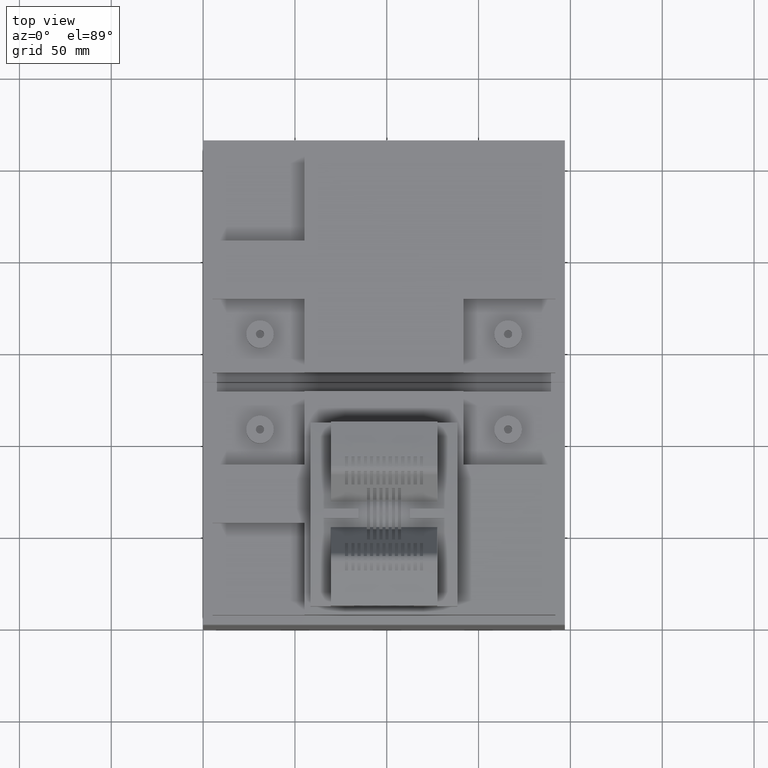
[diagram: clean part render]
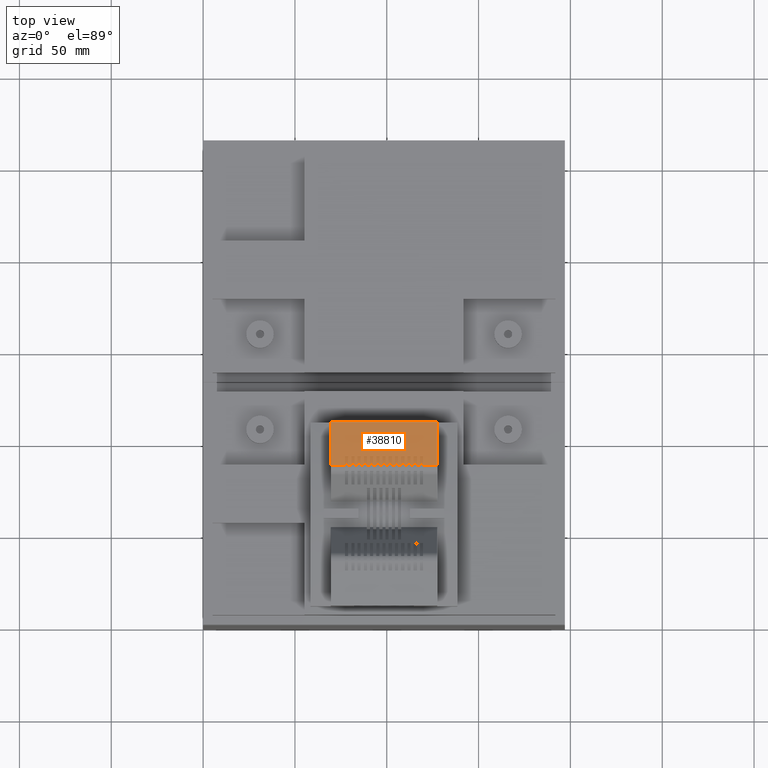
[diagram: same view with one face highlighted and labeled with its STEP entity id]
A machine part, top view. The second image highlights one B-rep face of the part: STEP entity #38810.
In plain terms, the highlighted cylindrical surface (partial cylindrical patch) has radius 252.5 mm, axis along (1, 0, 0).
Its self-contained STEP definition (entity closure, byte-faithful):
#14690=CARTESIAN_POINT('',(127.5,364.05,217.7));
#14700=VERTEX_POINT('',#14690);
#14730=CARTESIAN_POINT('',(68.9999999999996,364.05,217.7));
#14740=DIRECTION('',(1.,0.,0.));
#14750=VECTOR('',#14740,1.);
#14760=LINE('',#14730,#14750);
#14770=CARTESIAN_POINT('',(69.5,364.05,217.7));
#14780=VERTEX_POINT('',#14770);
#14790=EDGE_CURVE('',#14780,#14700,#14760,.T.);
#15840=CARTESIAN_POINT('',(106.15,340.06458602042,221.356308529541));
#15850=DIRECTION('',(1.,0.,0.));
#15860=VECTOR('',#15850,1.);
#15870=LINE('',#15840,#15860);
#15880=CARTESIAN_POINT('',(106.15,340.06458602042,221.356308529541));
#15890=VERTEX_POINT('',#15880);
#15900=CARTESIAN_POINT('',(107.85,340.06458602042,221.356308529541));
#15910=VERTEX_POINT('',#15900);
#15920=EDGE_CURVE('',#15890,#15910,#15870,.T.);
#24330=CARTESIAN_POINT('',(69.5,340.06458602042,221.356308529541));
#24340=VERTEX_POINT('',#24330);
#24370=CARTESIAN_POINT('',(69.5,340.06458602042,221.356308529541));
#24380=DIRECTION('',(1.,0.,0.));
#24390=VECTOR('',#24380,1.);
#24400=LINE('',#24370,#24390);
#24410=CARTESIAN_POINT('',(77.25,340.06458602042,221.356308529541));
#24420=VERTEX_POINT('',#24410);
#24430=EDGE_CURVE('',#24340,#24420,#24400,.T.);
#24760=CARTESIAN_POINT('',(69.5,314.049999999991,-29.8000000000542));
#24770=DIRECTION('',(1.,0.,0.));
#24780=DIRECTION('',(0.,-1.,0.));
#24790=AXIS2_PLACEMENT_3D('',#24760,#24770,#24780);
#24800=CIRCLE('',#24790,252.500000000055);
#24810=EDGE_CURVE('',#14780,#24340,#24800,.T.);
#33170=CARTESIAN_POINT('',(112.95,340.06458602042,221.356308529541));
#33180=VERTEX_POINT('',#33170);
#33210=CARTESIAN_POINT('',(112.95,340.06458602042,221.356308529541));
#33220=DIRECTION('',(1.,0.,0.));
#33230=VECTOR('',#33220,1.);
#33240=LINE('',#33210,#33230);
#33250=CARTESIAN_POINT('',(114.65,340.06458602042,221.356308529541));
#33260=VERTEX_POINT('',#33250);
#33270=EDGE_CURVE('',#33180,#33260,#33240,.T.);
#33510=CARTESIAN_POINT('',(107.85,314.049999999991,-29.8000000000542));
#33520=DIRECTION('',(1.,0.,0.));
#33530=DIRECTION('',(0.,-1.,0.));
#33540=AXIS2_PLACEMENT_3D('',#33510,#33520,#33530);
#33550=CIRCLE('',#33540,252.500000000055);
#33560=CARTESIAN_POINT('',(107.85,345.05,220.789804261865));
#33570=VERTEX_POINT('',#33560);
#33580=EDGE_CURVE('',#33570,#15910,#33550,.T.);
#34480=CARTESIAN_POINT('',(68.9999999999996,314.049999999991,
-29.8000000000542));
#34490=DIRECTION('',(1.,0.,0.));
#34500=DIRECTION('',(0.,-1.,0.));
#34510=AXIS2_PLACEMENT_3D('',#34480,#34490,#34500);
#34520=CYLINDRICAL_SURFACE('',#34510,252.500000000055);
#34530=CARTESIAN_POINT('',(119.75,340.06458602042,221.356308529541));
#34540=DIRECTION('',(1.,0.,0.));
#34550=VECTOR('',#34540,1.);
#34560=LINE('',#34530,#34550);
#34570=CARTESIAN_POINT('',(119.75,340.06458602042,221.356308529541));
#34580=VERTEX_POINT('',#34570);
#34590=CARTESIAN_POINT('',(127.5,340.06458602042,221.356308529541));
#34600=VERTEX_POINT('',#34590);
#34610=EDGE_CURVE('',#34580,#34600,#34560,.T.);
#34620=ORIENTED_EDGE('',*,*,#34610,.T.);
#34630=CARTESIAN_POINT('',(119.75,314.049999999991,-29.8000000000542));
#34640=DIRECTION('',(1.,0.,0.));
#34650=DIRECTION('',(0.,-1.,0.));
#34660=AXIS2_PLACEMENT_3D('',#34630,#34640,#34650);
#34670=CIRCLE('',#34660,252.500000000055);
#34680=CARTESIAN_POINT('',(119.75,345.05,220.789804261865));
#34690=VERTEX_POINT('',#34680);
#34700=EDGE_CURVE('',#34690,#34580,#34670,.T.);
#34710=ORIENTED_EDGE('',*,*,#34700,.T.);
#34720=CARTESIAN_POINT('',(68.9999999999996,345.05,220.789804261865));
#34730=DIRECTION('',(1.,0.,0.));
#34740=VECTOR('',#34730,1.);
#34750=LINE('',#34720,#34740);
#34760=CARTESIAN_POINT('',(118.05,345.05,220.789804261865));
#34770=VERTEX_POINT('',#34760);
#34780=EDGE_CURVE('',#34770,#34690,#34750,.T.);
#34790=ORIENTED_EDGE('',*,*,#34780,.T.);
#34800=CARTESIAN_POINT('',(118.05,314.049999999991,-29.8000000000542));
#34810=DIRECTION('',(1.,0.,0.));
#34820=DIRECTION('',(0.,-1.,0.));
#34830=AXIS2_PLACEMENT_3D('',#34800,#34810,#34820);
#34840=CIRCLE('',#34830,252.500000000055);
#34850=CARTESIAN_POINT('',(118.05,340.06458602042,221.356308529541));
#34860=VERTEX_POINT('',#34850);
#34870=EDGE_CURVE('',#34770,#34860,#34840,.T.);
#34880=ORIENTED_EDGE('',*,*,#34870,.F.);
#34890=CARTESIAN_POINT('',(116.35,340.06458602042,221.356308529541));
#34900=DIRECTION('',(1.,0.,0.));
#34910=VECTOR('',#34900,1.);
#34920=LINE('',#34890,#34910);
#34930=CARTESIAN_POINT('',(116.35,340.06458602042,221.356308529541));
#34940=VERTEX_POINT('',#34930);
#34950=EDGE_CURVE('',#34940,#34860,#34920,.T.);
#34960=ORIENTED_EDGE('',*,*,#34950,.T.);
#34970=CARTESIAN_POINT('',(116.35,314.049999999991,-29.8000000000542));
#34980=DIRECTION('',(1.,0.,0.));
#34990=DIRECTION('',(0.,-1.,0.));
#35000=AXIS2_PLACEMENT_3D('',#34970,#34980,#34990);
#35010=CIRCLE('',#35000,252.500000000055);
#35020=CARTESIAN_POINT('',(116.35,345.05,220.789804261865));
#35030=VERTEX_POINT('',#35020);
#35040=EDGE_CURVE('',#35030,#34940,#35010,.T.);
#35050=ORIENTED_EDGE('',*,*,#35040,.T.);
#35060=CARTESIAN_POINT('',(68.9999999999996,345.05,220.789804261865));
#35070=DIRECTION('',(1.,0.,0.));
#35080=VECTOR('',#35070,1.);
#35090=LINE('',#35060,#35080);
#35100=CARTESIAN_POINT('',(114.65,345.05,220.789804261865));
#35110=VERTEX_POINT('',#35100);
#35120=EDGE_CURVE('',#35110,#35030,#35090,.T.);
#35130=ORIENTED_EDGE('',*,*,#35120,.T.);
#35140=CARTESIAN_POINT('',(114.65,314.049999999991,-29.8000000000542));
#35150=DIRECTION('',(1.,0.,0.));
#35160=DIRECTION('',(0.,-1.,0.));
#35170=AXIS2_PLACEMENT_3D('',#35140,#35150,#35160);
#35180=CIRCLE('',#35170,252.500000000055);
#35190=EDGE_CURVE('',#35110,#33260,#35180,.T.);
#35200=ORIENTED_EDGE('',*,*,#35190,.F.);
#35210=ORIENTED_EDGE('',*,*,#33270,.T.);
#35220=CARTESIAN_POINT('',(112.95,314.049999999991,-29.8000000000542));
#35230=DIRECTION('',(1.,0.,0.));
#35240=DIRECTION('',(0.,-1.,0.));
#35250=AXIS2_PLACEMENT_3D('',#35220,#35230,#35240);
#35260=CIRCLE('',#35250,252.500000000055);
#35270=CARTESIAN_POINT('',(112.95,345.05,220.789804261865));
#35280=VERTEX_POINT('',#35270);
#35290=EDGE_CURVE('',#35280,#33180,#35260,.T.);
#35300=ORIENTED_EDGE('',*,*,#35290,.T.);
#35310=CARTESIAN_POINT('',(68.9999999999996,345.05,220.789804261865));
#35320=DIRECTION('',(1.,0.,0.));
#35330=VECTOR('',#35320,1.);
#35340=LINE('',#35310,#35330);
#35350=CARTESIAN_POINT('',(111.25,345.05,220.789804261865));
#35360=VERTEX_POINT('',#35350);
#35370=EDGE_CURVE('',#35360,#35280,#35340,.T.);
#35380=ORIENTED_EDGE('',*,*,#35370,.T.);
#35390=CARTESIAN_POINT('',(111.25,314.049999999991,-29.8000000000542));
#35400=DIRECTION('',(1.,0.,0.));
#35410=DIRECTION('',(0.,-1.,0.));
#35420=AXIS2_PLACEMENT_3D('',#35390,#35400,#35410);
#35430=CIRCLE('',#35420,252.500000000055);
#35440=CARTESIAN_POINT('',(111.25,340.06458602042,221.356308529541));
#35450=VERTEX_POINT('',#35440);
#35460=EDGE_CURVE('',#35360,#35450,#35430,.T.);
#35470=ORIENTED_EDGE('',*,*,#35460,.F.);
#35480=CARTESIAN_POINT('',(109.55,340.06458602042,221.356308529541));
#35490=DIRECTION('',(1.,0.,0.));
#35500=VECTOR('',#35490,1.);
#35510=LINE('',#35480,#35500);
#35520=CARTESIAN_POINT('',(109.55,340.06458602042,221.356308529541));
#35530=VERTEX_POINT('',#35520);
#35540=EDGE_CURVE('',#35530,#35450,#35510,.T.);
#35550=ORIENTED_EDGE('',*,*,#35540,.T.);
#35560=CARTESIAN_POINT('',(109.55,314.049999999991,-29.8000000000542));
#35570=DIRECTION('',(1.,0.,0.));
#35580=DIRECTION('',(0.,-1.,0.));
#35590=AXIS2_PLACEMENT_3D('',#35560,#35570,#35580);
#35600=CIRCLE('',#35590,252.500000000055);
#35610=CARTESIAN_POINT('',(109.55,345.05,220.789804261865));
#35620=VERTEX_POINT('',#35610);
#35630=EDGE_CURVE('',#35620,#35530,#35600,.T.);
#35640=ORIENTED_EDGE('',*,*,#35630,.T.);
#35650=CARTESIAN_POINT('',(68.9999999999996,345.05,220.789804261865));
#35660=DIRECTION('',(1.,0.,0.));
#35670=VECTOR('',#35660,1.);
#35680=LINE('',#35650,#35670);
#35690=EDGE_CURVE('',#33570,#35620,#35680,.T.);
#35700=ORIENTED_EDGE('',*,*,#35690,.T.);
#35710=ORIENTED_EDGE('',*,*,#33580,.F.);
#35720=ORIENTED_EDGE('',*,*,#15920,.T.);
#35730=CARTESIAN_POINT('',(106.15,314.049999999991,-29.8000000000542));
#35740=DIRECTION('',(1.,0.,0.));
#35750=DIRECTION('',(0.,-1.,0.));
#35760=AXIS2_PLACEMENT_3D('',#35730,#35740,#35750);
#35770=CIRCLE('',#35760,252.500000000055);
#35780=CARTESIAN_POINT('',(106.15,345.05,220.789804261865));
#35790=VERTEX_POINT('',#35780);
#35800=EDGE_CURVE('',#35790,#15890,#35770,.T.);
#35810=ORIENTED_EDGE('',*,*,#35800,.T.);
#35820=CARTESIAN_POINT('',(68.9999999999996,345.05,220.789804261865));
#35830=DIRECTION('',(1.,0.,0.));
#35840=VECTOR('',#35830,1.);
#35850=LINE('',#35820,#35840);
#35860=CARTESIAN_POINT('',(104.45,345.05,220.789804261865));
#35870=VERTEX_POINT('',#35860);
#35880=EDGE_CURVE('',#35870,#35790,#35850,.T.);
#35890=ORIENTED_EDGE('',*,*,#35880,.T.);
#35900=CARTESIAN_POINT('',(104.45,314.049999999991,-29.8000000000542));
#35910=DIRECTION('',(1.,0.,0.));
#35920=DIRECTION('',(0.,-1.,0.));
#35930=AXIS2_PLACEMENT_3D('',#35900,#35910,#35920);
#35940=CIRCLE('',#35930,252.500000000055);
#35950=CARTESIAN_POINT('',(104.45,340.06458602042,221.356308529541));
#35960=VERTEX_POINT('',#35950);
#35970=EDGE_CURVE('',#35870,#35960,#35940,.T.);
#35980=ORIENTED_EDGE('',*,*,#35970,.F.);
#35990=CARTESIAN_POINT('',(102.75,340.06458602042,221.356308529541));
#36000=DIRECTION('',(1.,0.,0.));
#36010=VECTOR('',#36000,1.);
#36020=LINE('',#35990,#36010);
#36030=CARTESIAN_POINT('',(102.75,340.06458602042,221.356308529541));
#36040=VERTEX_POINT('',#36030);
#36050=EDGE_CURVE('',#36040,#35960,#36020,.T.);
#36060=ORIENTED_EDGE('',*,*,#36050,.T.);
#36070=CARTESIAN_POINT('',(102.75,314.049999999991,-29.8000000000542));
#36080=DIRECTION('',(1.,0.,0.));
#36090=DIRECTION('',(0.,-1.,0.));
#36100=AXIS2_PLACEMENT_3D('',#36070,#36080,#36090);
#36110=CIRCLE('',#36100,252.500000000055);
#36120=CARTESIAN_POINT('',(102.75,345.05,220.789804261865));
#36130=VERTEX_POINT('',#36120);
#36140=EDGE_CURVE('',#36130,#36040,#36110,.T.);
#36150=ORIENTED_EDGE('',*,*,#36140,.T.);
#36160=CARTESIAN_POINT('',(68.9999999999996,345.05,220.789804261865));
#36170=DIRECTION('',(1.,0.,0.));
#36180=VECTOR('',#36170,1.);
#36190=LINE('',#36160,#36180);
#36200=CARTESIAN_POINT('',(101.05,345.05,220.789804261865));
#36210=VERTEX_POINT('',#36200);
#36220=EDGE_CURVE('',#36210,#36130,#36190,.T.);
#36230=ORIENTED_EDGE('',*,*,#36220,.T.);
#36240=CARTESIAN_POINT('',(101.05,314.049999999991,-29.8000000000542));
#36250=DIRECTION('',(1.,0.,0.));
#36260=DIRECTION('',(0.,-1.,0.));
#36270=AXIS2_PLACEMENT_3D('',#36240,#36250,#36260);
#36280=CIRCLE('',#36270,252.500000000055);
#36290=CARTESIAN_POINT('',(101.05,340.06458602042,221.356308529541));
#36300=VERTEX_POINT('',#36290);
#36310=EDGE_CURVE('',#36210,#36300,#36280,.T.);
#36320=ORIENTED_EDGE('',*,*,#36310,.F.);
#36330=CARTESIAN_POINT('',(99.35,340.06458602042,221.356308529541));
#36340=DIRECTION('',(1.,0.,0.));
#36350=VECTOR('',#36340,1.);
#36360=LINE('',#36330,#36350);
#36370=CARTESIAN_POINT('',(99.35,340.06458602042,221.356308529541));
#36380=VERTEX_POINT('',#36370);
#36390=EDGE_CURVE('',#36380,#36300,#36360,.T.);
#36400=ORIENTED_EDGE('',*,*,#36390,.T.);
#36410=CARTESIAN_POINT('',(99.35,314.049999999991,-29.8000000000542));
#36420=DIRECTION('',(1.,0.,0.));
#36430=DIRECTION('',(0.,-1.,0.));
#36440=AXIS2_PLACEMENT_3D('',#36410,#36420,#36430);
#36450=CIRCLE('',#36440,252.500000000055);
#36460=CARTESIAN_POINT('',(99.35,345.05,220.789804261865));
#36470=VERTEX_POINT('',#36460);
#36480=EDGE_CURVE('',#36470,#36380,#36450,.T.);
#36490=ORIENTED_EDGE('',*,*,#36480,.T.);
#36500=CARTESIAN_POINT('',(68.9999999999996,345.05,220.789804261865));
#36510=DIRECTION('',(1.,0.,0.));
#36520=VECTOR('',#36510,1.);
#36530=LINE('',#36500,#36520);
#36540=CARTESIAN_POINT('',(97.65,345.05,220.789804261865));
#36550=VERTEX_POINT('',#36540);
#36560=EDGE_CURVE('',#36550,#36470,#36530,.T.);
#36570=ORIENTED_EDGE('',*,*,#36560,.T.);
#36580=CARTESIAN_POINT('',(97.65,314.049999999991,-29.8000000000542));
#36590=DIRECTION('',(1.,0.,0.));
#36600=DIRECTION('',(0.,-1.,0.));
#36610=AXIS2_PLACEMENT_3D('',#36580,#36590,#36600);
#36620=CIRCLE('',#36610,252.500000000055);
#36630=CARTESIAN_POINT('',(97.65,340.06458602042,221.356308529541));
#36640=VERTEX_POINT('',#36630);
#36650=EDGE_CURVE('',#36550,#36640,#36620,.T.);
#36660=ORIENTED_EDGE('',*,*,#36650,.F.);
#36670=CARTESIAN_POINT('',(95.95,340.06458602042,221.356308529541));
#36680=DIRECTION('',(1.,0.,0.));
#36690=VECTOR('',#36680,1.);
#36700=LINE('',#36670,#36690);
#36710=CARTESIAN_POINT('',(95.95,340.06458602042,221.356308529541));
#36720=VERTEX_POINT('',#36710);
#36730=EDGE_CURVE('',#36720,#36640,#36700,.T.);
#36740=ORIENTED_EDGE('',*,*,#36730,.T.);
#36750=CARTESIAN_POINT('',(95.95,314.049999999991,-29.8000000000542));
#36760=DIRECTION('',(1.,0.,0.));
#36770=DIRECTION('',(0.,-1.,0.));
#36780=AXIS2_PLACEMENT_3D('',#36750,#36760,#36770);
#36790=CIRCLE('',#36780,252.500000000055);
#36800=CARTESIAN_POINT('',(95.95,345.05,220.789804261865));
#36810=VERTEX_POINT('',#36800);
#36820=EDGE_CURVE('',#36810,#36720,#36790,.T.);
#36830=ORIENTED_EDGE('',*,*,#36820,.T.);
#36840=CARTESIAN_POINT('',(68.9999999999996,345.05,220.789804261865));
#36850=DIRECTION('',(1.,0.,0.));
#36860=VECTOR('',#36850,1.);
#36870=LINE('',#36840,#36860);
#36880=CARTESIAN_POINT('',(94.25,345.05,220.789804261865));
#36890=VERTEX_POINT('',#36880);
#36900=EDGE_CURVE('',#36890,#36810,#36870,.T.);
#36910=ORIENTED_EDGE('',*,*,#36900,.T.);
#36920=CARTESIAN_POINT('',(94.25,314.049999999991,-29.8000000000542));
#36930=DIRECTION('',(1.,0.,0.));
#36940=DIRECTION('',(0.,-1.,0.));
#36950=AXIS2_PLACEMENT_3D('',#36920,#36930,#36940);
#36960=CIRCLE('',#36950,252.500000000055);
#36970=CARTESIAN_POINT('',(94.25,340.06458602042,221.356308529541));
#36980=VERTEX_POINT('',#36970);
#36990=EDGE_CURVE('',#36890,#36980,#36960,.T.);
#37000=ORIENTED_EDGE('',*,*,#36990,.F.);
#37010=CARTESIAN_POINT('',(92.55,340.06458602042,221.356308529541));
#37020=DIRECTION('',(1.,0.,0.));
#37030=VECTOR('',#37020,1.);
#37040=LINE('',#37010,#37030);
#37050=CARTESIAN_POINT('',(92.55,340.06458602042,221.356308529541));
#37060=VERTEX_POINT('',#37050);
#37070=EDGE_CURVE('',#37060,#36980,#37040,.T.);
#37080=ORIENTED_EDGE('',*,*,#37070,.T.);
#37090=CARTESIAN_POINT('',(92.55,314.049999999991,-29.8000000000542));
#37100=DIRECTION('',(1.,0.,0.));
#37110=DIRECTION('',(0.,-1.,0.));
#37120=AXIS2_PLACEMENT_3D('',#37090,#37100,#37110);
#37130=CIRCLE('',#37120,252.500000000055);
#37140=CARTESIAN_POINT('',(92.55,345.05,220.789804261865));
#37150=VERTEX_POINT('',#37140);
#37160=EDGE_CURVE('',#37150,#37060,#37130,.T.);
#37170=ORIENTED_EDGE('',*,*,#37160,.T.);
#37180=CARTESIAN_POINT('',(68.9999999999996,345.05,220.789804261865));
#37190=DIRECTION('',(1.,0.,0.));
#37200=VECTOR('',#37190,1.);
#37210=LINE('',#37180,#37200);
#37220=CARTESIAN_POINT('',(90.85,345.05,220.789804261865));
#37230=VERTEX_POINT('',#37220);
#37240=EDGE_CURVE('',#37230,#37150,#37210,.T.);
#37250=ORIENTED_EDGE('',*,*,#37240,.T.);
#37260=CARTESIAN_POINT('',(90.85,314.049999999991,-29.8000000000542));
#37270=DIRECTION('',(1.,0.,0.));
#37280=DIRECTION('',(0.,-1.,0.));
#37290=AXIS2_PLACEMENT_3D('',#37260,#37270,#37280);
#37300=CIRCLE('',#37290,252.500000000055);
#37310=CARTESIAN_POINT('',(90.85,340.06458602042,221.356308529541));
#37320=VERTEX_POINT('',#37310);
#37330=EDGE_CURVE('',#37230,#37320,#37300,.T.);
#37340=ORIENTED_EDGE('',*,*,#37330,.F.);
#37350=CARTESIAN_POINT('',(89.15,340.06458602042,221.356308529541));
#37360=DIRECTION('',(1.,0.,0.));
#37370=VECTOR('',#37360,1.);
#37380=LINE('',#37350,#37370);
#37390=CARTESIAN_POINT('',(89.15,340.06458602042,221.356308529541));
#37400=VERTEX_POINT('',#37390);
#37410=EDGE_CURVE('',#37400,#37320,#37380,.T.);
#37420=ORIENTED_EDGE('',*,*,#37410,.T.);
#37430=CARTESIAN_POINT('',(89.15,314.049999999991,-29.8000000000542));
#37440=DIRECTION('',(1.,0.,0.));
#37450=DIRECTION('',(0.,-1.,0.));
#37460=AXIS2_PLACEMENT_3D('',#37430,#37440,#37450);
#37470=CIRCLE('',#37460,252.500000000055);
#37480=CARTESIAN_POINT('',(89.15,345.05,220.789804261865));
#37490=VERTEX_POINT('',#37480);
#37500=EDGE_CURVE('',#37490,#37400,#37470,.T.);
#37510=ORIENTED_EDGE('',*,*,#37500,.T.);
#37520=CARTESIAN_POINT('',(68.9999999999996,345.05,220.789804261865));
#37530=DIRECTION('',(1.,0.,0.));
#37540=VECTOR('',#37530,1.);
#37550=LINE('',#37520,#37540);
#37560=CARTESIAN_POINT('',(87.45,345.05,220.789804261865));
#37570=VERTEX_POINT('',#37560);
#37580=EDGE_CURVE('',#37570,#37490,#37550,.T.);
#37590=ORIENTED_EDGE('',*,*,#37580,.T.);
#37600=CARTESIAN_POINT('',(87.45,314.049999999991,-29.8000000000542));
#37610=DIRECTION('',(1.,0.,0.));
#37620=DIRECTION('',(0.,-1.,0.));
#37630=AXIS2_PLACEMENT_3D('',#37600,#37610,#37620);
#37640=CIRCLE('',#37630,252.500000000055);
#37650=CARTESIAN_POINT('',(87.45,340.06458602042,221.356308529541));
#37660=VERTEX_POINT('',#37650);
#37670=EDGE_CURVE('',#37570,#37660,#37640,.T.);
#37680=ORIENTED_EDGE('',*,*,#37670,.F.);
#37690=CARTESIAN_POINT('',(85.75,340.06458602042,221.356308529541));
#37700=DIRECTION('',(1.,0.,0.));
#37710=VECTOR('',#37700,1.);
#37720=LINE('',#37690,#37710);
#37730=CARTESIAN_POINT('',(85.75,340.06458602042,221.356308529541));
#37740=VERTEX_POINT('',#37730);
#37750=EDGE_CURVE('',#37740,#37660,#37720,.T.);
#37760=ORIENTED_EDGE('',*,*,#37750,.T.);
#37770=CARTESIAN_POINT('',(85.75,314.049999999991,-29.8000000000542));
#37780=DIRECTION('',(1.,0.,0.));
#37790=DIRECTION('',(0.,-1.,0.));
#37800=AXIS2_PLACEMENT_3D('',#37770,#37780,#37790);
#37810=CIRCLE('',#37800,252.500000000055);
#37820=CARTESIAN_POINT('',(85.75,345.05,220.789804261865));
#37830=VERTEX_POINT('',#37820);
#37840=EDGE_CURVE('',#37830,#37740,#37810,.T.);
#37850=ORIENTED_EDGE('',*,*,#37840,.T.);
#37860=CARTESIAN_POINT('',(68.9999999999996,345.05,220.789804261865));
#37870=DIRECTION('',(1.,0.,0.));
#37880=VECTOR('',#37870,1.);
#37890=LINE('',#37860,#37880);
#37900=CARTESIAN_POINT('',(84.05,345.05,220.789804261865));
#37910=VERTEX_POINT('',#37900);
#37920=EDGE_CURVE('',#37910,#37830,#37890,.T.);
#37930=ORIENTED_EDGE('',*,*,#37920,.T.);
#37940=CARTESIAN_POINT('',(84.05,314.049999999991,-29.8000000000542));
#37950=DIRECTION('',(1.,0.,0.));
#37960=DIRECTION('',(0.,-1.,0.));
#37970=AXIS2_PLACEMENT_3D('',#37940,#37950,#37960);
#37980=CIRCLE('',#37970,252.500000000055);
#37990=CARTESIAN_POINT('',(84.05,340.06458602042,221.356308529541));
#38000=VERTEX_POINT('',#37990);
#38010=EDGE_CURVE('',#37910,#38000,#37980,.T.);
#38020=ORIENTED_EDGE('',*,*,#38010,.F.);
#38030=CARTESIAN_POINT('',(82.35,340.06458602042,221.356308529541));
#38040=DIRECTION('',(1.,0.,0.));
#38050=VECTOR('',#38040,1.);
#38060=LINE('',#38030,#38050);
#38070=CARTESIAN_POINT('',(82.35,340.06458602042,221.356308529541));
#38080=VERTEX_POINT('',#38070);
#38090=EDGE_CURVE('',#38080,#38000,#38060,.T.);
#38100=ORIENTED_EDGE('',*,*,#38090,.T.);
#38110=CARTESIAN_POINT('',(82.35,314.049999999991,-29.8000000000542));
#38120=DIRECTION('',(1.,0.,0.));
#38130=DIRECTION('',(0.,-1.,0.));
#38140=AXIS2_PLACEMENT_3D('',#38110,#38120,#38130);
#38150=CIRCLE('',#38140,252.500000000055);
#38160=CARTESIAN_POINT('',(82.35,345.05,220.789804261865));
#38170=VERTEX_POINT('',#38160);
#38180=EDGE_CURVE('',#38170,#38080,#38150,.T.);
#38190=ORIENTED_EDGE('',*,*,#38180,.T.);
#38200=CARTESIAN_POINT('',(68.9999999999996,345.05,220.789804261865));
#38210=DIRECTION('',(1.,0.,0.));
#38220=VECTOR('',#38210,1.);
#38230=LINE('',#38200,#38220);
#38240=CARTESIAN_POINT('',(80.65,345.05,220.789804261865));
#38250=VERTEX_POINT('',#38240);
#38260=EDGE_CURVE('',#38250,#38170,#38230,.T.);
#38270=ORIENTED_EDGE('',*,*,#38260,.T.);
#38280=CARTESIAN_POINT('',(80.65,314.049999999991,-29.8000000000542));
#38290=DIRECTION('',(1.,0.,0.));
#38300=DIRECTION('',(0.,-1.,0.));
#38310=AXIS2_PLACEMENT_3D('',#38280,#38290,#38300);
#38320=CIRCLE('',#38310,252.500000000055);
#38330=CARTESIAN_POINT('',(80.65,340.06458602042,221.356308529541));
#38340=VERTEX_POINT('',#38330);
#38350=EDGE_CURVE('',#38250,#38340,#38320,.T.);
#38360=ORIENTED_EDGE('',*,*,#38350,.F.);
#38370=CARTESIAN_POINT('',(78.95,340.06458602042,221.356308529541));
#38380=DIRECTION('',(1.,0.,0.));
#38390=VECTOR('',#38380,1.);
#38400=LINE('',#38370,#38390);
#38410=CARTESIAN_POINT('',(78.95,340.06458602042,221.356308529541));
#38420=VERTEX_POINT('',#38410);
#38430=EDGE_CURVE('',#38420,#38340,#38400,.T.);
#38440=ORIENTED_EDGE('',*,*,#38430,.T.);
#38450=CARTESIAN_POINT('',(78.95,314.049999999991,-29.8000000000542));
#38460=DIRECTION('',(1.,0.,0.));
#38470=DIRECTION('',(0.,-1.,0.));
#38480=AXIS2_PLACEMENT_3D('',#38450,#38460,#38470);
#38490=CIRCLE('',#38480,252.500000000055);
#38500=CARTESIAN_POINT('',(78.95,345.05,220.789804261865));
#38510=VERTEX_POINT('',#38500);
#38520=EDGE_CURVE('',#38510,#38420,#38490,.T.);
#38530=ORIENTED_EDGE('',*,*,#38520,.T.);
#38540=CARTESIAN_POINT('',(68.9999999999996,345.05,220.789804261865));
#38550=DIRECTION('',(1.,0.,0.));
#38560=VECTOR('',#38550,1.);
#38570=LINE('',#38540,#38560);
#38580=CARTESIAN_POINT('',(77.25,345.05,220.789804261865));
#38590=VERTEX_POINT('',#38580);
#38600=EDGE_CURVE('',#38590,#38510,#38570,.T.);
#38610=ORIENTED_EDGE('',*,*,#38600,.T.);
#38620=CARTESIAN_POINT('',(77.25,314.049999999991,-29.8000000000542));
#38630=DIRECTION('',(1.,0.,0.));
#38640=DIRECTION('',(0.,-1.,0.));
#38650=AXIS2_PLACEMENT_3D('',#38620,#38630,#38640);
#38660=CIRCLE('',#38650,252.500000000055);
#38670=EDGE_CURVE('',#38590,#24420,#38660,.T.);
#38680=ORIENTED_EDGE('',*,*,#38670,.F.);
#38690=ORIENTED_EDGE('',*,*,#24430,.T.);
#38700=ORIENTED_EDGE('',*,*,#24810,.T.);
#38710=ORIENTED_EDGE('',*,*,#14790,.F.);
#38720=CARTESIAN_POINT('',(127.5,314.049999999991,-29.8000000000542));
#38730=DIRECTION('',(1.,0.,0.));
#38740=DIRECTION('',(0.,-1.,0.));
#38750=AXIS2_PLACEMENT_3D('',#38720,#38730,#38740);
#38760=CIRCLE('',#38750,252.500000000055);
#38770=EDGE_CURVE('',#14700,#34600,#38760,.T.);
#38780=ORIENTED_EDGE('',*,*,#38770,.F.);
#38790=EDGE_LOOP('',(#38780,#38710,#38700,#38690,#38680,#38610,#38530,
#38440,#38360,#38270,#38190,#38100,#38020,#37930,#37850,#37760,#37680,
#37590,#37510,#37420,#37340,#37250,#37170,#37080,#37000,#36910,#36830,
#36740,#36660,#36570,#36490,#36400,#36320,#36230,#36150,#36060,#35980,
#35890,#35810,#35720,#35710,#35700,#35640,#35550,#35470,#35380,#35300,
#35210,#35200,#35130,#35050,#34960,#34880,#34790,#34710,#34620));
#38800=FACE_OUTER_BOUND('',#38790,.T.);
#38810=ADVANCED_FACE('',(#38800),#34520,.T.);